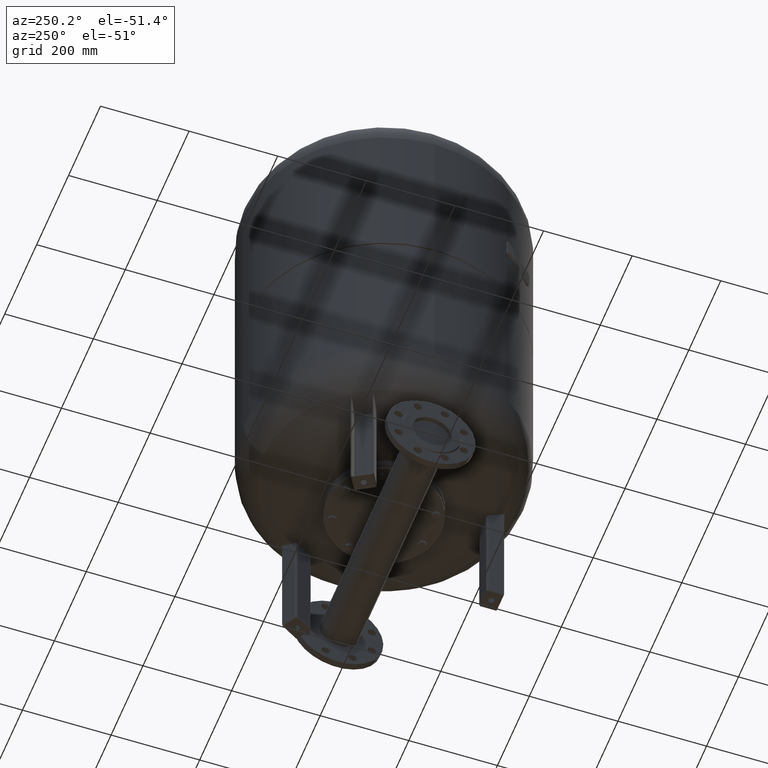
[diagram: clean part render]
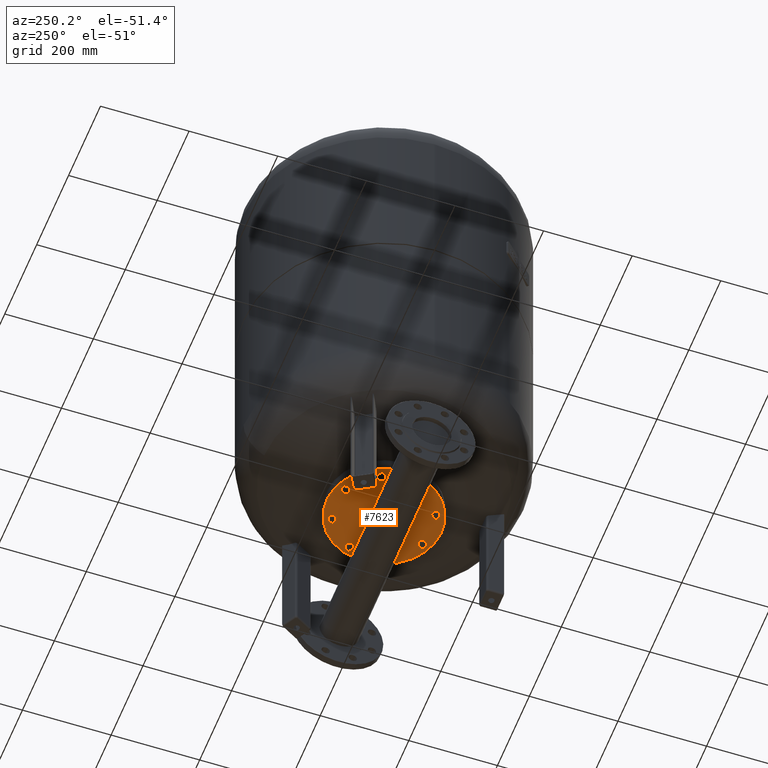
[diagram: same view with one face highlighted and labeled with its STEP entity id]
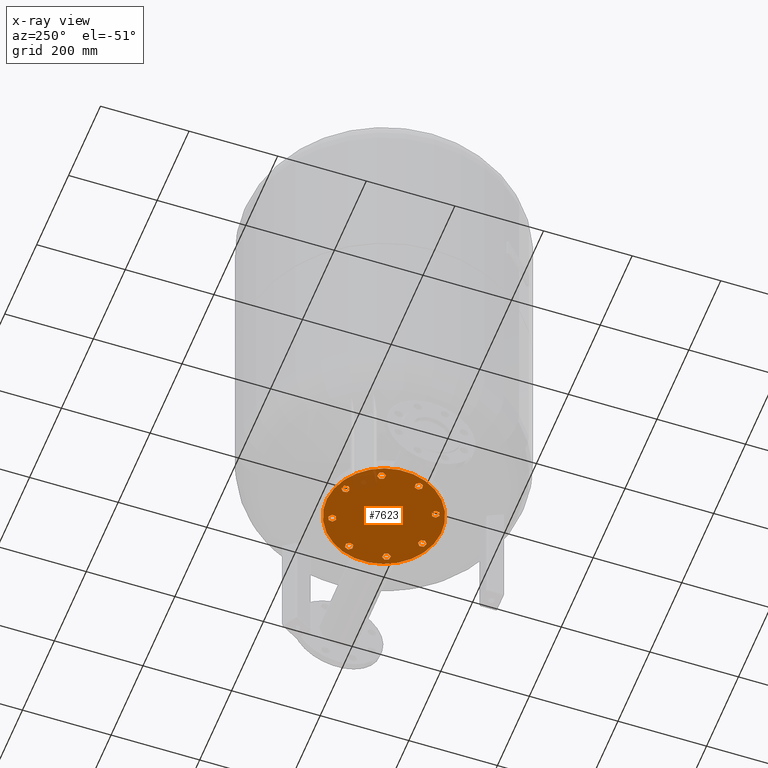
[diagram: x-ray of the same camera — body ghosted, the highlighted face saturated]
A machine part, auxiliary view. The second image highlights one B-rep face of the part: STEP entity #7623.
The next image is the same camera in x-ray: the body ghosted, the highlighted face saturated — about 4% of this face is hidden behind the body in this view.
In plain terms, the highlighted planar face has unit normal (0, 0, 1).
Its self-contained STEP definition (entity closure, byte-faithful):
#3641=CARTESIAN_POINT('',(-120.104339226467270,-49.748846207461682,184.0));
#3642=VERTEX_POINT('',#3641);
#3651=CARTESIAN_POINT('',(120.104339226467290,49.748846207461654,184.0));
#3652=VERTEX_POINT('',#3651);
#3653=CARTESIAN_POINT('',(1.874608E-015,-4.525704E-015,184.0));
#3654=DIRECTION('',(0.0,0.0,1.0));
#3655=DIRECTION('',(-0.923879532511287,-0.382683432365090,0.0));
#3656=AXIS2_PLACEMENT_3D('',#3653,#3654,#3655);
#3657=CIRCLE('',#3656,130.0);
#3658=EDGE_CURVE('',#3642,#3652,#3657,.T.);
#3685=CARTESIAN_POINT('',(-19.586246089239278,-8.112888766139911,184.0));
#3686=VERTEX_POINT('',#3685);
#3702=CARTESIAN_POINT('',(19.586246089239285,8.112888766139898,184.0));
#3703=VERTEX_POINT('',#3702);
#3710=CARTESIAN_POINT('',(1.874608E-015,-4.525704E-015,184.0));
#3711=DIRECTION('',(0.0,0.0,1.0));
#3712=DIRECTION('',(-0.923879532511287,-0.382683432365090,0.0));
#3713=AXIS2_PLACEMENT_3D('',#3710,#3711,#3712);
#3714=CIRCLE('',#3713,21.200000000000003);
#3715=EDGE_CURVE('',#3686,#3703,#3714,.T.);
#5586=CARTESIAN_POINT('',(-34.766493326885701,-96.003251377674417,184.0));
#5587=VERTEX_POINT('',#5586);
#5588=CARTESIAN_POINT('',(-43.300926875592538,-92.468173254628084,184.0));
#5589=VERTEX_POINT('',#5588);
#5590=CARTESIAN_POINT('',(-34.766493326885701,-96.003251377674417,184.0));
#5591=DIRECTION('',(-0.923879532511286,0.382683432365091,0.0));
#5592=VECTOR('',#5591,9.237604307034024);
#5593=LINE('',#5590,#5592);
#5594=EDGE_CURVE('',#5587,#5589,#5593,.T.);
#5626=CARTESIAN_POINT('',(-33.560744011452989,-105.161826699287860,184.0));
#5627=VERTEX_POINT('',#5626);
#5628=CARTESIAN_POINT('',(-33.560744011452989,-105.161826699287860,184.0));
#5629=DIRECTION('',(-0.130526192220053,0.991444861373810,0.0));
#5630=VECTOR('',#5629,9.237604307034005);
#5631=LINE('',#5628,#5630);
#5632=EDGE_CURVE('',#5627,#5587,#5631,.T.);
#5657=CARTESIAN_POINT('',(-40.889428244727128,-110.785323897855010,184.0));
#5658=VERTEX_POINT('',#5657);
#5659=CARTESIAN_POINT('',(-40.889428244727128,-110.785323897855010,184.0));
#5660=DIRECTION('',(0.793353340291235,0.608761429008721,0.0));
#5661=VECTOR('',#5660,9.237604307034024);
#5662=LINE('',#5659,#5661);
#5663=EDGE_CURVE('',#5658,#5627,#5662,.T.);
#5688=CARTESIAN_POINT('',(-49.423861793433986,-107.250245774808700,184.0));
#5689=VERTEX_POINT('',#5688);
#5690=CARTESIAN_POINT('',(-49.423861793433986,-107.250245774808700,184.0));
#5691=DIRECTION('',(0.923879532511287,-0.382683432365088,0.0));
#5692=VECTOR('',#5691,9.237604307034033);
#5693=LINE('',#5690,#5692);
#5694=EDGE_CURVE('',#5689,#5658,#5693,.T.);
#5719=CARTESIAN_POINT('',(-50.629611108866676,-98.091670453195235,184.0));
#5720=VERTEX_POINT('',#5719);
#5721=CARTESIAN_POINT('',(-43.300926875592538,-92.468173254628084,184.0));
#5722=DIRECTION('',(-0.793353340291235,-0.608761429008721,0.0));
#5723=VECTOR('',#5722,9.237604307034024);
#5724=LINE('',#5721,#5723);
#5725=EDGE_CURVE('',#5589,#5720,#5724,.T.);
#5750=CARTESIAN_POINT('',(-50.629611108866676,-98.091670453195235,184.0));
#5751=DIRECTION('',(0.130526192220051,-0.991444861373811,0.0));
#5752=VECTOR('',#5751,9.237604307034030);
#5753=LINE('',#5750,#5752);
#5754=EDGE_CURVE('',#5720,#5689,#5753,.T.);
#5832=CARTESIAN_POINT('',(43.300926875592602,-92.468173254628084,184.0));
#5833=VERTEX_POINT('',#5832);
#5834=CARTESIAN_POINT('',(34.766493326885758,-96.003251377674403,184.0));
#5835=VERTEX_POINT('',#5834);
#5836=CARTESIAN_POINT('',(43.300926875592602,-92.468173254628084,184.0));
#5837=DIRECTION('',(-0.923879532511287,-0.382683432365090,0.0));
#5838=VECTOR('',#5837,9.237604307034026);
#5839=LINE('',#5836,#5838);
#5840=EDGE_CURVE('',#5833,#5835,#5839,.T.);
#5872=CARTESIAN_POINT('',(50.629611108866733,-98.091670453195221,184.0));
#5873=VERTEX_POINT('',#5872);
#5874=CARTESIAN_POINT('',(50.629611108866733,-98.091670453195221,184.0));
#5875=DIRECTION('',(-0.793353340291235,0.608761429008721,0.0));
#5876=VECTOR('',#5875,9.237604307034008);
#5877=LINE('',#5874,#5876);
#5878=EDGE_CURVE('',#5873,#5833,#5877,.T.);
#5903=CARTESIAN_POINT('',(49.423861793434035,-107.250245774808680,184.0));
#5904=VERTEX_POINT('',#5903);
#5905=CARTESIAN_POINT('',(49.423861793434035,-107.250245774808680,184.0));
#5906=DIRECTION('',(0.130526192220051,0.991444861373810,0.0));
#5907=VECTOR('',#5906,9.237604307034017);
#5908=LINE('',#5905,#5907);
#5909=EDGE_CURVE('',#5904,#5873,#5908,.T.);
#5934=CARTESIAN_POINT('',(40.889428244727185,-110.785323897854990,184.0));
#5935=VERTEX_POINT('',#5934);
#5936=CARTESIAN_POINT('',(40.889428244727185,-110.785323897854990,184.0));
#5937=DIRECTION('',(0.923879532511287,0.382683432365090,0.0));
#5938=VECTOR('',#5937,9.237604307034031);
#5939=LINE('',#5936,#5938);
#5940=EDGE_CURVE('',#5935,#5904,#5939,.T.);
#5965=CARTESIAN_POINT('',(33.560744011453068,-105.161826699287840,184.0));
#5966=VERTEX_POINT('',#5965);
#5967=CARTESIAN_POINT('',(34.766493326885758,-96.003251377674403,184.0));
#5968=DIRECTION('',(-0.130526192220051,-0.991444861373810,0.0));
#5969=VECTOR('',#5968,9.237604307034003);
#5970=LINE('',#5967,#5969);
#5971=EDGE_CURVE('',#5835,#5966,#5970,.T.);
#5996=CARTESIAN_POINT('',(33.560744011453068,-105.161826699287840,184.0));
#5997=DIRECTION('',(0.793353340291234,-0.608761429008722,0.0));
#5998=VECTOR('',#5997,9.237604307034006);
#5999=LINE('',#5996,#5998);
#6000=EDGE_CURVE('',#5966,#5935,#5999,.T.);
#6078=CARTESIAN_POINT('',(96.003251377674403,-34.766493326885708,184.0));
#6079=VERTEX_POINT('',#6078);
#6080=CARTESIAN_POINT('',(92.468173254628098,-43.300926875592552,184.0));
#6081=VERTEX_POINT('',#6080);
#6082=CARTESIAN_POINT('',(96.003251377674403,-34.766493326885708,184.0));
#6083=DIRECTION('',(-0.382683432365089,-0.923879532511287,0.0));
#6084=VECTOR('',#6083,9.237604307034019);
#6085=LINE('',#6082,#6084);
#6086=EDGE_CURVE('',#6079,#6081,#6085,.T.);
#6118=CARTESIAN_POINT('',(105.161826699287870,-33.560744011453004,184.0));
#6119=VERTEX_POINT('',#6118);
#6120=CARTESIAN_POINT('',(105.161826699287870,-33.560744011453004,184.0));
#6121=DIRECTION('',(-0.991444861373810,-0.130526192220052,0.0));
#6122=VECTOR('',#6121,9.237604307034031);
#6123=LINE('',#6120,#6122);
#6124=EDGE_CURVE('',#6119,#6079,#6123,.T.);
#6149=CARTESIAN_POINT('',(110.785323897855010,-40.889428244727164,184.0));
#6150=VERTEX_POINT('',#6149);
#6151=CARTESIAN_POINT('',(110.785323897855010,-40.889428244727164,184.0));
#6152=DIRECTION('',(-0.608761429008719,0.793353340291236,0.0));
#6153=VECTOR('',#6152,9.237604307034031);
#6154=LINE('',#6151,#6153);
#6155=EDGE_CURVE('',#6150,#6119,#6154,.T.);
#6180=CARTESIAN_POINT('',(107.250245774808690,-49.423861793434014,184.0));
#6181=VERTEX_POINT('',#6180);
#6182=CARTESIAN_POINT('',(107.250245774808690,-49.423861793434014,184.0));
#6183=DIRECTION('',(0.382683432365090,0.923879532511287,0.0));
#6184=VECTOR('',#6183,9.237604307034031);
#6185=LINE('',#6182,#6184);
#6186=EDGE_CURVE('',#6181,#6150,#6185,.T.);
#6211=CARTESIAN_POINT('',(98.091670453195235,-50.629611108866698,184.0));
#6212=VERTEX_POINT('',#6211);
#6213=CARTESIAN_POINT('',(92.468173254628098,-43.300926875592552,184.0));
#6214=DIRECTION('',(0.608761429008720,-0.793353340291236,0.0));
#6215=VECTOR('',#6214,9.237604307034021);
#6216=LINE('',#6213,#6215);
#6217=EDGE_CURVE('',#6081,#6212,#6216,.T.);
#6242=CARTESIAN_POINT('',(98.091670453195235,-50.629611108866698,184.0));
#6243=DIRECTION('',(0.991444861373811,0.130526192220050,0.0));
#6244=VECTOR('',#6243,9.237604307034015);
#6245=LINE('',#6242,#6244);
#6246=EDGE_CURVE('',#6212,#6181,#6245,.T.);
#6324=CARTESIAN_POINT('',(92.468173254628084,43.300926875592594,184.0));
#6325=VERTEX_POINT('',#6324);
#6326=CARTESIAN_POINT('',(96.003251377674403,34.766493326885751,184.0));
#6327=VERTEX_POINT('',#6326);
#6328=CARTESIAN_POINT('',(92.468173254628084,43.300926875592594,184.0));
#6329=DIRECTION('',(0.382683432365090,-0.923879532511287,0.0));
#6330=VECTOR('',#6329,9.237604307034026);
#6331=LINE('',#6328,#6330);
#6332=EDGE_CURVE('',#6325,#6327,#6331,.T.);
#6364=CARTESIAN_POINT('',(98.091670453195221,50.629611108866726,184.0));
#6365=VERTEX_POINT('',#6364);
#6366=CARTESIAN_POINT('',(98.091670453195221,50.629611108866726,184.0));
#6367=DIRECTION('',(-0.608761429008721,-0.793353340291235,0.0));
#6368=VECTOR('',#6367,9.237604307034008);
#6369=LINE('',#6366,#6368);
#6370=EDGE_CURVE('',#6365,#6325,#6369,.T.);
#6395=CARTESIAN_POINT('',(107.250245774808680,49.423861793434028,184.0));
#6396=VERTEX_POINT('',#6395);
#6397=CARTESIAN_POINT('',(107.250245774808680,49.423861793434028,184.0));
#6398=DIRECTION('',(-0.991444861373810,0.130526192220051,0.0));
#6399=VECTOR('',#6398,9.237604307034017);
#6400=LINE('',#6397,#6399);
#6401=EDGE_CURVE('',#6396,#6365,#6400,.T.);
#6426=CARTESIAN_POINT('',(110.785323897854990,40.889428244727178,184.0));
#6427=VERTEX_POINT('',#6426);
#6428=CARTESIAN_POINT('',(110.785323897854990,40.889428244727178,184.0));
#6429=DIRECTION('',(-0.382683432365090,0.923879532511287,0.0));
#6430=VECTOR('',#6429,9.237604307034031);
#6431=LINE('',#6428,#6430);
#6432=EDGE_CURVE('',#6427,#6396,#6431,.T.);
#6457=CARTESIAN_POINT('',(105.161826699287840,33.560744011453060,184.0));
#6458=VERTEX_POINT('',#6457);
#6459=CARTESIAN_POINT('',(96.003251377674403,34.766493326885751,184.0));
#6460=DIRECTION('',(0.991444861373810,-0.130526192220051,0.0));
#6461=VECTOR('',#6460,9.237604307034003);
#6462=LINE('',#6459,#6461);
#6463=EDGE_CURVE('',#6327,#6458,#6462,.T.);
#6488=CARTESIAN_POINT('',(105.161826699287840,33.560744011453060,184.0));
#6489=DIRECTION('',(0.608761429008722,0.793353340291234,0.0));
#6490=VECTOR('',#6489,9.237604307034006);
#6491=LINE('',#6488,#6490);
#6492=EDGE_CURVE('',#6458,#6427,#6491,.T.);
#6570=CARTESIAN_POINT('',(34.766493326885723,96.003251377674417,184.0));
#6571=VERTEX_POINT('',#6570);
#6572=CARTESIAN_POINT('',(43.300926875592552,92.468173254628084,184.0));
#6573=VERTEX_POINT('',#6572);
#6574=CARTESIAN_POINT('',(34.766493326885723,96.003251377674417,184.0));
#6575=DIRECTION('',(0.923879532511286,-0.382683432365092,0.0));
#6576=VECTOR('',#6575,9.237604307034017);
#6577=LINE('',#6574,#6576);
#6578=EDGE_CURVE('',#6571,#6573,#6577,.T.);
#6610=CARTESIAN_POINT('',(33.560744011453025,105.161826699287860,184.0));
#6611=VERTEX_POINT('',#6610);
#6612=CARTESIAN_POINT('',(33.560744011453025,105.161826699287860,184.0));
#6613=DIRECTION('',(0.130526192220052,-0.991444861373810,0.0));
#6614=VECTOR('',#6613,9.237604307034003);
#6615=LINE('',#6612,#6614);
#6616=EDGE_CURVE('',#6611,#6571,#6615,.T.);
#6641=CARTESIAN_POINT('',(40.889428244727164,110.785323897855010,184.0));
#6642=VERTEX_POINT('',#6641);
#6643=CARTESIAN_POINT('',(40.889428244727164,110.785323897855010,184.0));
#6644=DIRECTION('',(-0.793353340291235,-0.608761429008721,0.0));
#6645=VECTOR('',#6644,9.237604307034024);
#6646=LINE('',#6643,#6645);
#6647=EDGE_CURVE('',#6642,#6611,#6646,.T.);
#6672=CARTESIAN_POINT('',(49.423861793434014,107.250245774808690,184.0));
#6673=VERTEX_POINT('',#6672);
#6674=CARTESIAN_POINT('',(49.423861793434014,107.250245774808690,184.0));
#6675=DIRECTION('',(-0.923879532511287,0.382683432365090,0.0));
#6676=VECTOR('',#6675,9.237604307034031);
#6677=LINE('',#6674,#6676);
#6678=EDGE_CURVE('',#6673,#6642,#6677,.T.);
#6703=CARTESIAN_POINT('',(50.629611108866698,98.091670453195235,184.0));
#6704=VERTEX_POINT('',#6703);
#6705=CARTESIAN_POINT('',(43.300926875592552,92.468173254628084,184.0));
#6706=DIRECTION('',(0.793353340291235,0.608761429008721,0.0));
#6707=VECTOR('',#6706,9.237604307034030);
#6708=LINE('',#6705,#6707);
#6709=EDGE_CURVE('',#6573,#6704,#6708,.T.);
#6734=CARTESIAN_POINT('',(50.629611108866698,98.091670453195235,184.0));
#6735=DIRECTION('',(-0.130526192220050,0.991444861373811,0.0));
#6736=VECTOR('',#6735,9.237604307034015);
#6737=LINE('',#6734,#6736);
#6738=EDGE_CURVE('',#6704,#6673,#6737,.T.);
#6816=CARTESIAN_POINT('',(-43.300926875592580,92.468173254628084,184.0));
#6817=VERTEX_POINT('',#6816);
#6818=CARTESIAN_POINT('',(-34.766493326885751,96.003251377674403,184.0));
#6819=VERTEX_POINT('',#6818);
#6820=CARTESIAN_POINT('',(-43.300926875592580,92.468173254628084,184.0));
#6821=DIRECTION('',(0.923879532511287,0.382683432365090,0.0));
#6822=VECTOR('',#6821,9.237604307034012);
#6823=LINE('',#6820,#6822);
#6824=EDGE_CURVE('',#6817,#6819,#6823,.T.);
#6856=CARTESIAN_POINT('',(-50.629611108866705,98.091670453195235,184.0));
#6857=VERTEX_POINT('',#6856);
#6858=CARTESIAN_POINT('',(-50.629611108866705,98.091670453195235,184.0));
#6859=DIRECTION('',(0.793353340291234,-0.608761429008722,0.0));
#6860=VECTOR('',#6859,9.237604307034012);
#6861=LINE('',#6858,#6860);
#6862=EDGE_CURVE('',#6857,#6817,#6861,.T.);
#6887=CARTESIAN_POINT('',(-49.423861793434014,107.250245774808680,184.0));
#6888=VERTEX_POINT('',#6887);
#6889=CARTESIAN_POINT('',(-49.423861793434014,107.250245774808680,184.0));
#6890=DIRECTION('',(-0.130526192220051,-0.991444861373810,0.0));
#6891=VECTOR('',#6890,9.237604307034003);
#6892=LINE('',#6889,#6891);
#6893=EDGE_CURVE('',#6888,#6857,#6892,.T.);
#6918=CARTESIAN_POINT('',(-40.889428244727171,110.785323897855010,184.0));
#6919=VERTEX_POINT('',#6918);
#6920=CARTESIAN_POINT('',(-40.889428244727171,110.785323897855010,184.0));
#6921=DIRECTION('',(-0.923879532511286,-0.382683432365091,0.0));
#6922=VECTOR('',#6921,9.237604307034031);
#6923=LINE('',#6920,#6922);
#6924=EDGE_CURVE('',#6919,#6888,#6923,.T.);
#6949=CARTESIAN_POINT('',(-33.560744011453032,105.161826699287860,184.0));
#6950=VERTEX_POINT('',#6949);
#6951=CARTESIAN_POINT('',(-34.766493326885751,96.003251377674403,184.0));
#6952=DIRECTION('',(0.130526192220054,0.991444861373810,0.0));
#6953=VECTOR('',#6952,9.237604307034019);
#6954=LINE('',#6951,#6953);
#6955=EDGE_CURVE('',#6819,#6950,#6954,.T.);
#6980=CARTESIAN_POINT('',(-33.560744011453032,105.161826699287860,184.0));
#6981=DIRECTION('',(-0.793353340291235,0.608761429008721,0.0));
#6982=VECTOR('',#6981,9.237604307034024);
#6983=LINE('',#6980,#6982);
#6984=EDGE_CURVE('',#6950,#6919,#6983,.T.);
#7062=CARTESIAN_POINT('',(-96.003251377674417,34.766493326885723,184.0));
#7063=VERTEX_POINT('',#7062);
#7064=CARTESIAN_POINT('',(-92.468173254628084,43.300926875592552,184.0));
#7065=VERTEX_POINT('',#7064);
#7066=CARTESIAN_POINT('',(-96.003251377674417,34.766493326885723,184.0));
#7067=DIRECTION('',(0.382683432365092,0.923879532511286,0.0));
#7068=VECTOR('',#7067,9.237604307034017);
#7069=LINE('',#7066,#7068);
#7070=EDGE_CURVE('',#7063,#7065,#7069,.T.);
#7102=CARTESIAN_POINT('',(-105.161826699287860,33.560744011453025,184.0));
#7103=VERTEX_POINT('',#7102);
#7104=CARTESIAN_POINT('',(-105.161826699287860,33.560744011453025,184.0));
#7105=DIRECTION('',(0.991444861373810,0.130526192220052,0.0));
#7106=VECTOR('',#7105,9.237604307034003);
#7107=LINE('',#7104,#7106);
#7108=EDGE_CURVE('',#7103,#7063,#7107,.T.);
#7133=CARTESIAN_POINT('',(-110.785323897855010,40.889428244727164,184.0));
#7134=VERTEX_POINT('',#7133);
#7135=CARTESIAN_POINT('',(-110.785323897855010,40.889428244727164,184.0));
#7136=DIRECTION('',(0.608761429008721,-0.793353340291235,0.0));
#7137=VECTOR('',#7136,9.237604307034024);
#7138=LINE('',#7135,#7137);
#7139=EDGE_CURVE('',#7134,#7103,#7138,.T.);
#7164=CARTESIAN_POINT('',(-107.250245774808690,49.423861793434014,184.0));
#7165=VERTEX_POINT('',#7164);
#7166=CARTESIAN_POINT('',(-107.250245774808690,49.423861793434014,184.0));
#7167=DIRECTION('',(-0.382683432365090,-0.923879532511287,0.0));
#7168=VECTOR('',#7167,9.237604307034031);
#7169=LINE('',#7166,#7168);
#7170=EDGE_CURVE('',#7165,#7134,#7169,.T.);
#7195=CARTESIAN_POINT('',(-98.091670453195235,50.629611108866698,184.0));
#7196=VERTEX_POINT('',#7195);
#7197=CARTESIAN_POINT('',(-92.468173254628084,43.300926875592552,184.0));
#7198=DIRECTION('',(-0.608761429008721,0.793353340291235,0.0));
#7199=VECTOR('',#7198,9.237604307034030);
#7200=LINE('',#7197,#7199);
#7201=EDGE_CURVE('',#7065,#7196,#7200,.T.);
#7226=CARTESIAN_POINT('',(-98.091670453195235,50.629611108866698,184.0));
#7227=DIRECTION('',(-0.991444861373811,-0.130526192220050,0.0));
#7228=VECTOR('',#7227,9.237604307034015);
#7229=LINE('',#7226,#7228);
#7230=EDGE_CURVE('',#7196,#7165,#7229,.T.);
#7308=CARTESIAN_POINT('',(-92.468173254628084,-43.300926875592587,184.0));
#7309=VERTEX_POINT('',#7308);
#7310=CARTESIAN_POINT('',(-96.003251377674403,-34.766493326885751,184.0));
#7311=VERTEX_POINT('',#7310);
#7312=CARTESIAN_POINT('',(-92.468173254628084,-43.300926875592587,184.0));
#7313=DIRECTION('',(-0.382683432365090,0.923879532511287,0.0));
#7314=VECTOR('',#7313,9.237604307034019);
#7315=LINE('',#7312,#7314);
#7316=EDGE_CURVE('',#7309,#7311,#7315,.T.);
#7348=CARTESIAN_POINT('',(-98.091670453195221,-50.629611108866719,184.0));
#7349=VERTEX_POINT('',#7348);
#7350=CARTESIAN_POINT('',(-98.091670453195221,-50.629611108866719,184.0));
#7351=DIRECTION('',(0.608761429008721,0.793353340291235,0.0));
#7352=VECTOR('',#7351,9.237604307034008);
#7353=LINE('',#7350,#7352);
#7354=EDGE_CURVE('',#7349,#7309,#7353,.T.);
#7379=CARTESIAN_POINT('',(-107.250245774808690,-49.423861793434014,184.0));
#7380=VERTEX_POINT('',#7379);
#7381=CARTESIAN_POINT('',(-107.250245774808690,-49.423861793434014,184.0));
#7382=DIRECTION('',(0.991444861373810,-0.130526192220052,0.0));
#7383=VECTOR('',#7382,9.237604307034031);
#7384=LINE('',#7381,#7383);
#7385=EDGE_CURVE('',#7380,#7349,#7384,.T.);
#7410=CARTESIAN_POINT('',(-110.785323897855010,-40.889428244727171,184.0));
#7411=VERTEX_POINT('',#7410);
#7412=CARTESIAN_POINT('',(-110.785323897855010,-40.889428244727171,184.0));
#7413=DIRECTION('',(0.382683432365090,-0.923879532511287,0.0));
#7414=VECTOR('',#7413,9.237604307034026);
#7415=LINE('',#7412,#7414);
#7416=EDGE_CURVE('',#7411,#7380,#7415,.T.);
#7441=CARTESIAN_POINT('',(-105.161826699287860,-33.560744011453039,184.0));
#7442=VERTEX_POINT('',#7441);
#7443=CARTESIAN_POINT('',(-96.003251377674403,-34.766493326885751,184.0));
#7444=DIRECTION('',(-0.991444861373810,0.130526192220053,0.0));
#7445=VECTOR('',#7444,9.237604307034019);
#7446=LINE('',#7443,#7445);
#7447=EDGE_CURVE('',#7311,#7442,#7446,.T.);
#7472=CARTESIAN_POINT('',(-105.161826699287860,-33.560744011453039,184.0));
#7473=DIRECTION('',(-0.608761429008722,-0.793353340291235,0.0));
#7474=VECTOR('',#7473,9.237604307034017);
#7475=LINE('',#7472,#7474);
#7476=EDGE_CURVE('',#7442,#7411,#7475,.T.);
#7509=CARTESIAN_POINT('',(1.874608E-015,-4.525704E-015,184.0));
#7510=DIRECTION('',(0.0,0.0,1.0));
#7511=DIRECTION('',(-0.923879532511287,-0.382683432365090,0.0));
#7512=AXIS2_PLACEMENT_3D('',#7509,#7510,#7511);
#7513=CIRCLE('',#7512,21.200000000000003);
#7514=EDGE_CURVE('',#3703,#3686,#7513,.T.);
#7536=CARTESIAN_POINT('',(1.874608E-015,-4.525704E-015,184.0));
#7537=DIRECTION('',(0.0,0.0,1.0));
#7538=DIRECTION('',(-0.923879532511287,-0.382683432365090,0.0));
#7539=AXIS2_PLACEMENT_3D('',#7536,#7537,#7538);
#7540=CIRCLE('',#7539,130.0);
#7541=EDGE_CURVE('',#3652,#3642,#7540,.T.);
#7546=CARTESIAN_POINT('',(1.874608E-015,-4.525704E-015,184.0));
#7547=DIRECTION('',(0.0,0.0,1.0));
#7548=DIRECTION('',(-0.923879532511287,-0.382683432365090,0.0));
#7549=AXIS2_PLACEMENT_3D('',#7546,#7547,#7548);
#7550=PLANE('',#7549);
#7551=ORIENTED_EDGE('',*,*,#7541,.F.);
#7552=ORIENTED_EDGE('',*,*,#3658,.F.);
#7553=EDGE_LOOP('',(#7551,#7552));
#7554=FACE_OUTER_BOUND('',#7553,.T.);
#7555=ORIENTED_EDGE('',*,*,#5594,.T.);
#7556=ORIENTED_EDGE('',*,*,#5725,.T.);
#7557=ORIENTED_EDGE('',*,*,#5754,.T.);
#7558=ORIENTED_EDGE('',*,*,#5694,.T.);
#7559=ORIENTED_EDGE('',*,*,#5663,.T.);
#7560=ORIENTED_EDGE('',*,*,#5632,.T.);
#7561=EDGE_LOOP('',(#7555,#7556,#7557,#7558,#7559,#7560));
#7562=FACE_BOUND('',#7561,.T.);
#7563=ORIENTED_EDGE('',*,*,#5840,.T.);
#7564=ORIENTED_EDGE('',*,*,#5971,.T.);
#7565=ORIENTED_EDGE('',*,*,#6000,.T.);
#7566=ORIENTED_EDGE('',*,*,#5940,.T.);
#7567=ORIENTED_EDGE('',*,*,#5909,.T.);
#7568=ORIENTED_EDGE('',*,*,#5878,.T.);
#7569=EDGE_LOOP('',(#7563,#7564,#7565,#7566,#7567,#7568));
#7570=FACE_BOUND('',#7569,.T.);
#7571=ORIENTED_EDGE('',*,*,#6086,.T.);
#7572=ORIENTED_EDGE('',*,*,#6217,.T.);
#7573=ORIENTED_EDGE('',*,*,#6246,.T.);
#7574=ORIENTED_EDGE('',*,*,#6186,.T.);
#7575=ORIENTED_EDGE('',*,*,#6155,.T.);
#7576=ORIENTED_EDGE('',*,*,#6124,.T.);
#7577=EDGE_LOOP('',(#7571,#7572,#7573,#7574,#7575,#7576));
#7578=FACE_BOUND('',#7577,.T.);
#7579=ORIENTED_EDGE('',*,*,#6332,.T.);
#7580=ORIENTED_EDGE('',*,*,#6463,.T.);
#7581=ORIENTED_EDGE('',*,*,#6492,.T.);
#7582=ORIENTED_EDGE('',*,*,#6432,.T.);
#7583=ORIENTED_EDGE('',*,*,#6401,.T.);
#7584=ORIENTED_EDGE('',*,*,#6370,.T.);
#7585=EDGE_LOOP('',(#7579,#7580,#7581,#7582,#7583,#7584));
#7586=FACE_BOUND('',#7585,.T.);
#7587=ORIENTED_EDGE('',*,*,#6578,.T.);
#7588=ORIENTED_EDGE('',*,*,#6709,.T.);
#7589=ORIENTED_EDGE('',*,*,#6738,.T.);
#7590=ORIENTED_EDGE('',*,*,#6678,.T.);
#7591=ORIENTED_EDGE('',*,*,#6647,.T.);
#7592=ORIENTED_EDGE('',*,*,#6616,.T.);
#7593=EDGE_LOOP('',(#7587,#7588,#7589,#7590,#7591,#7592));
#7594=FACE_BOUND('',#7593,.T.);
#7595=ORIENTED_EDGE('',*,*,#6824,.T.);
#7596=ORIENTED_EDGE('',*,*,#6955,.T.);
#7597=ORIENTED_EDGE('',*,*,#6984,.T.);
#7598=ORIENTED_EDGE('',*,*,#6924,.T.);
#7599=ORIENTED_EDGE('',*,*,#6893,.T.);
#7600=ORIENTED_EDGE('',*,*,#6862,.T.);
#7601=EDGE_LOOP('',(#7595,#7596,#7597,#7598,#7599,#7600));
#7602=FACE_BOUND('',#7601,.T.);
#7603=ORIENTED_EDGE('',*,*,#7070,.T.);
#7604=ORIENTED_EDGE('',*,*,#7201,.T.);
#7605=ORIENTED_EDGE('',*,*,#7230,.T.);
#7606=ORIENTED_EDGE('',*,*,#7170,.T.);
#7607=ORIENTED_EDGE('',*,*,#7139,.T.);
#7608=ORIENTED_EDGE('',*,*,#7108,.T.);
#7609=EDGE_LOOP('',(#7603,#7604,#7605,#7606,#7607,#7608));
#7610=FACE_BOUND('',#7609,.T.);
#7611=ORIENTED_EDGE('',*,*,#7316,.T.);
#7612=ORIENTED_EDGE('',*,*,#7447,.T.);
#7613=ORIENTED_EDGE('',*,*,#7476,.T.);
#7614=ORIENTED_EDGE('',*,*,#7416,.T.);
#7615=ORIENTED_EDGE('',*,*,#7385,.T.);
#7616=ORIENTED_EDGE('',*,*,#7354,.T.);
#7617=EDGE_LOOP('',(#7611,#7612,#7613,#7614,#7615,#7616));
#7618=FACE_BOUND('',#7617,.T.);
#7619=ORIENTED_EDGE('',*,*,#7514,.T.);
#7620=ORIENTED_EDGE('',*,*,#3715,.T.);
#7621=EDGE_LOOP('',(#7619,#7620));
#7622=FACE_BOUND('',#7621,.T.);
#7623=ADVANCED_FACE('',(#7554,#7562,#7570,#7578,#7586,#7594,#7602,#7610,#7618,#7622),#7550,.F.);